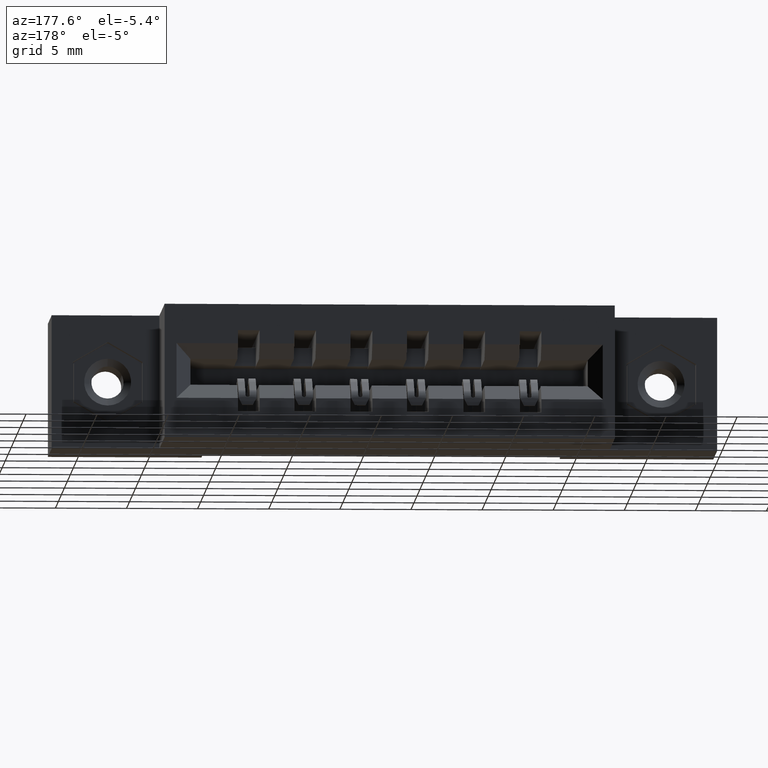
[diagram: clean part render]
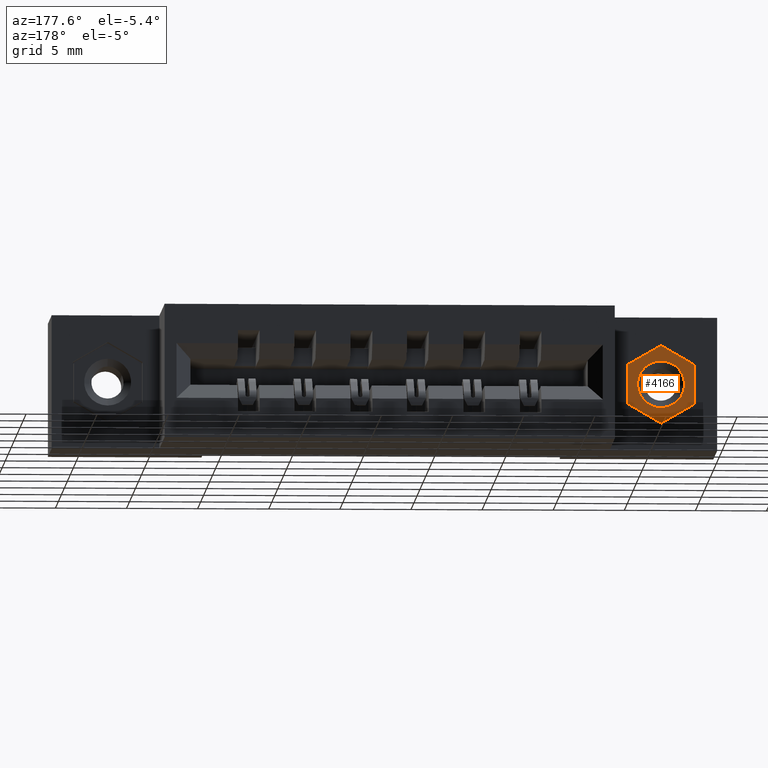
[diagram: same view with one face highlighted and labeled with its STEP entity id]
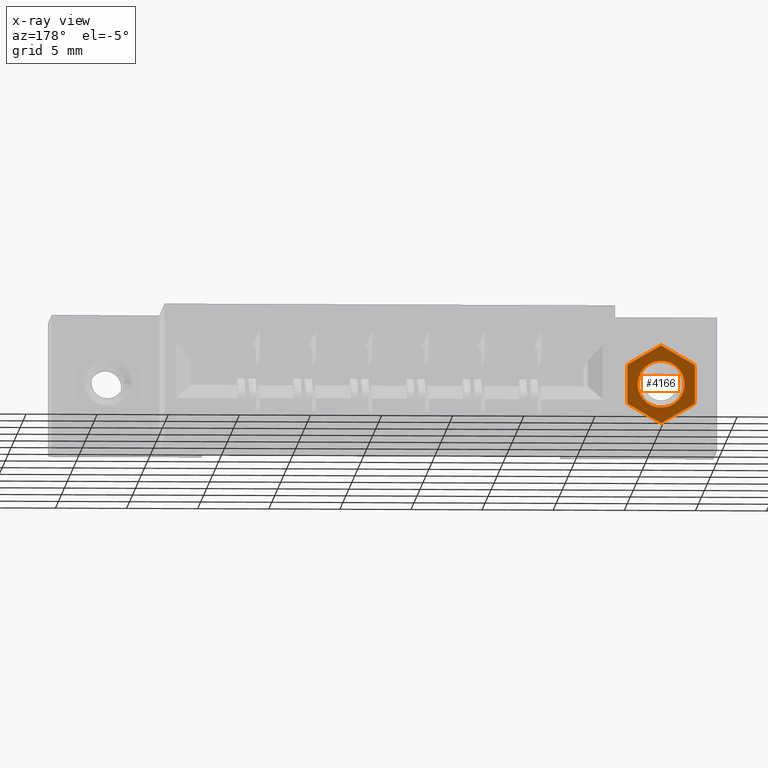
[diagram: x-ray of the same camera — body ghosted, the highlighted face saturated]
A machine part, auxiliary view. The second image highlights one B-rep face of the part: STEP entity #4166.
The next image is the same camera in x-ray: the body ghosted, the highlighted face saturated — about 0% of this face is hidden behind the body in this view.
In plain terms, the highlighted planar face has unit normal (-0, -1, 0).
Its self-contained STEP definition (entity closure, byte-faithful):
#186 = EDGE_CURVE ( 'NONE', #10315, #3218, #1554, .T. ) ;
#380 = EDGE_CURVE ( 'NONE', #554, #6451, #6772, .T. ) ;
#423 = DIRECTION ( 'NONE',  ( 0.0000000000000000000, -0.0000000000000000000, 1.000000000000000000 ) ) ;
#536 = LINE ( 'NONE', #3817, #8006 ) ;
#554 = VERTEX_POINT ( 'NONE', #1190 ) ;
#601 = EDGE_LOOP ( 'NONE', ( #3494, #4071, #2307, #6560, #881, #5470 ) ) ;
#881 = ORIENTED_EDGE ( 'NONE', *, *, #7821, .F. ) ;
#973 = VERTEX_POINT ( 'NONE', #4970 ) ;
#1190 = CARTESIAN_POINT ( 'NONE',  ( 0.09349999999999957000, 0.0000000000000000000, -0.05398225016922995200 ) ) ;
#1246 = CARTESIAN_POINT ( 'NONE',  ( -1.493979371535143900E-016, -6.829619984160658000E-017, 1.024442997624098700E-016 ) ) ;
#1304 = EDGE_CURVE ( 'NONE', #3218, #10315, #10151, .T. ) ;
#1455 = ORIENTED_EDGE ( 'NONE', *, *, #186, .F. ) ;
#1509 = DIRECTION ( 'NONE',  ( -0.0000000000000000000, -1.000000000000000000, -0.0000000000000000000 ) ) ;
#1531 = CARTESIAN_POINT ( 'NONE',  ( -0.09350000000000011100, 0.0000000000000000000, 0.05398225016923036100 ) ) ;
#1554 = CIRCLE ( 'NONE', #1565, 0.06500000000000014100 ) ;
#1565 = AXIS2_PLACEMENT_3D ( 'NONE', #1246, #2041, #7619 ) ;
#1705 = CARTESIAN_POINT ( 'NONE',  ( -0.09350000000000011100, 0.0000000000000000000, -0.05398225016922967400 ) ) ;
#1857 = EDGE_CURVE ( 'NONE', #3036, #6149, #536, .T. ) ;
#1998 = EDGE_CURVE ( 'NONE', #973, #3036, #2009, .T. ) ;
#2009 = LINE ( 'NONE', #1531, #10258 ) ;
#2010 = CARTESIAN_POINT ( 'NONE',  ( 1.659291999935455800E-017, 0.0000000000000000000, -0.1079645003384597700 ) ) ;
#2041 = DIRECTION ( 'NONE',  ( -0.0000000000000000000, -1.000000000000000000, -0.0000000000000000000 ) ) ;
#2065 = CARTESIAN_POINT ( 'NONE',  ( 1.514953011621329900E-017, 0.0000000000000000000, -0.1079645003384597700 ) ) ;
#2302 = DIRECTION ( 'NONE',  ( 0.0000000000000000000, 0.0000000000000000000, -1.000000000000000000 ) ) ;
#2307 = ORIENTED_EDGE ( 'NONE', *, *, #1857, .F. ) ;
#2540 = EDGE_CURVE ( 'NONE', #6451, #9197, #4736, .T. ) ;
#2565 = DIRECTION ( 'NONE',  ( 0.0000000000000000000, 0.0000000000000000000, 1.000000000000000000 ) ) ;
#2931 = DIRECTION ( 'NONE',  ( 0.8660254037844389300, 0.0000000000000000000, -0.4999999999999994400 ) ) ;
#3036 = VERTEX_POINT ( 'NONE', #5719 ) ;
#3218 = VERTEX_POINT ( 'NONE', #6240 ) ;
#3494 = ORIENTED_EDGE ( 'NONE', *, *, #380, .F. ) ;
#3521 = PLANE ( 'NONE',  #8090 ) ;
#3590 = DIRECTION ( 'NONE',  ( 0.0000000000000000000, 1.000000000000000000, 0.0000000000000000000 ) ) ;
#3817 = CARTESIAN_POINT ( 'NONE',  ( -3.158918927254356400E-016, 0.0000000000000000000, 0.1079645003384601700 ) ) ;
#3860 = CARTESIAN_POINT ( 'NONE',  ( -1.493979371535143900E-016, -6.829619984160658000E-017, 1.024442997624098700E-016 ) ) ;
#3871 = DIRECTION ( 'NONE',  ( -0.8660254037844386000, 0.0000000000000000000, 0.5000000000000000000 ) ) ;
#4056 = CARTESIAN_POINT ( 'NONE',  ( 0.09349999999999969400, 0.0000000000000000000, 0.05398225016923022300 ) ) ;
#4071 = ORIENTED_EDGE ( 'NONE', *, *, #8559, .F. ) ;
#4156 = VECTOR ( 'NONE', #2565, 39.37007874015748100 ) ;
#4166 = ADVANCED_FACE ( 'NONE', ( #9459, #5804 ), #3521, .F. ) ;
#4711 = CARTESIAN_POINT ( 'NONE',  ( 0.09349999999999969400, 0.0000000000000000000, 0.05398225016923022300 ) ) ;
#4736 = LINE ( 'NONE', #6200, #5113 ) ;
#4970 = CARTESIAN_POINT ( 'NONE',  ( -0.09350000000000011100, 0.0000000000000000000, 0.05398225016923036100 ) ) ;
#4980 = DIRECTION ( 'NONE',  ( -0.8660254037844383700, 0.0000000000000000000, -0.5000000000000004400 ) ) ;
#5113 = VECTOR ( 'NONE', #3871, 39.37007874015748900 ) ;
#5470 = ORIENTED_EDGE ( 'NONE', *, *, #2540, .F. ) ;
#5566 = DIRECTION ( 'NONE',  ( 0.8660254037844389300, 0.0000000000000000000, 0.4999999999999995600 ) ) ;
#5602 = LINE ( 'NONE', #4056, #9759 ) ;
#5719 = CARTESIAN_POINT ( 'NONE',  ( -3.158918927254356400E-016, 0.0000000000000000000, 0.1079645003384601700 ) ) ;
#5804 = FACE_BOUND ( 'NONE', #7175, .T. ) ;
#6012 = CARTESIAN_POINT ( 'NONE',  ( -0.09350000000000011100, 0.0000000000000000000, -0.05398225016922967400 ) ) ;
#6149 = VERTEX_POINT ( 'NONE', #4711 ) ;
#6200 = CARTESIAN_POINT ( 'NONE',  ( 1.514953011621329900E-017, 0.0000000000000000000, -0.1079645003384597700 ) ) ;
#6240 = CARTESIAN_POINT ( 'NONE',  ( -1.414377329590565800E-016, -6.829619984160658000E-017, 0.06500000000000025200 ) ) ;
#6451 = VERTEX_POINT ( 'NONE', #2065 ) ;
#6560 = ORIENTED_EDGE ( 'NONE', *, *, #1998, .F. ) ;
#6772 = LINE ( 'NONE', #8975, #8286 ) ;
#7120 = AXIS2_PLACEMENT_3D ( 'NONE', #3860, #1509, #2302 ) ;
#7175 = EDGE_LOOP ( 'NONE', ( #1455, #7819 ) ) ;
#7619 = DIRECTION ( 'NONE',  ( 0.0000000000000000000, 0.0000000000000000000, -1.000000000000000000 ) ) ;
#7721 = CARTESIAN_POINT ( 'NONE',  ( -1.493979371535143900E-016, -6.829619984160658000E-017, -0.06500000000000004400 ) ) ;
#7819 = ORIENTED_EDGE ( 'NONE', *, *, #1304, .F. ) ;
#7821 = EDGE_CURVE ( 'NONE', #9197, #973, #8764, .T. ) ;
#8006 = VECTOR ( 'NONE', #2931, 39.37007874015748100 ) ;
#8090 = AXIS2_PLACEMENT_3D ( 'NONE', #2010, #3590, #423 ) ;
#8286 = VECTOR ( 'NONE', #4980, 39.37007874015748100 ) ;
#8559 = EDGE_CURVE ( 'NONE', #6149, #554, #5602, .T. ) ;
#8764 = LINE ( 'NONE', #1705, #4156 ) ;
#8975 = CARTESIAN_POINT ( 'NONE',  ( 0.09349999999999957000, 0.0000000000000000000, -0.05398225016922995200 ) ) ;
#9197 = VERTEX_POINT ( 'NONE', #6012 ) ;
#9459 = FACE_OUTER_BOUND ( 'NONE', #601, .T. ) ;
#9638 = DIRECTION ( 'NONE',  ( -1.265160300422887000E-015, 0.0000000000000000000, -1.000000000000000000 ) ) ;
#9759 = VECTOR ( 'NONE', #9638, 39.37007874015748100 ) ;
#10151 = CIRCLE ( 'NONE', #7120, 0.06500000000000014100 ) ;
#10258 = VECTOR ( 'NONE', #5566, 39.37007874015748100 ) ;
#10315 = VERTEX_POINT ( 'NONE', #7721 ) ;